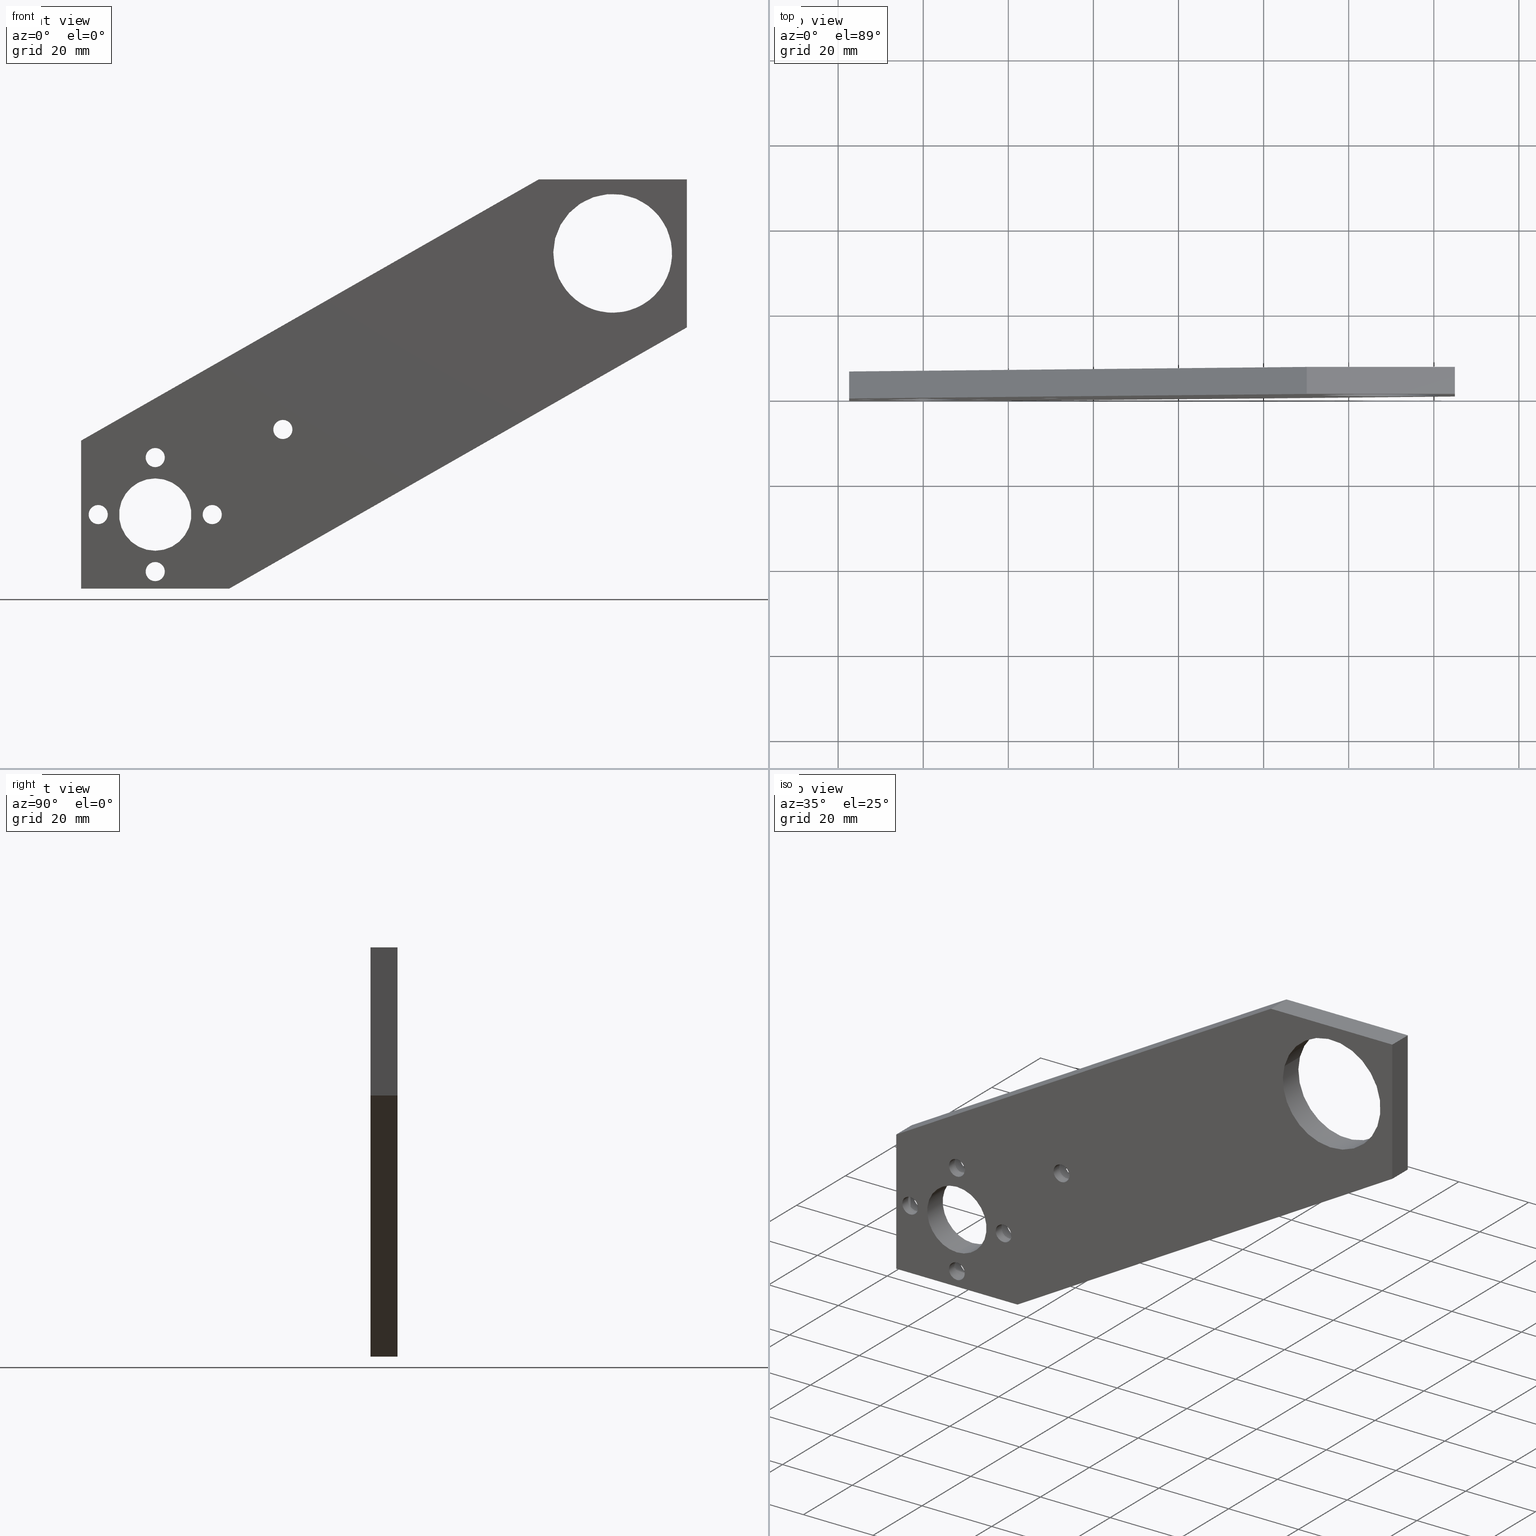
[diagram: canonical four-view strip — front | top / right | iso, engineering-drawing reading convention]
A machine part, canonical four-view strip (front | top / right | iso — engineering-drawing reading convention). The complete STEP part file that produces these views, byte-faithful:
ISO-10303-21;
HEADER;
/* Generated by software containing ST-Developer
 * from STEP Tools, Inc. (www.steptools.com) 
 */

FILE_DESCRIPTION(
/* description */ (''),
/* implementation_level */ '2;1');

FILE_NAME(
/* name */ 
'C:\\Users\\Charl\X\E8ne Brillard\\Desktop\\GHOSTINTHESHELL\\LM\\OpenS
PIM\\CAD\\Website\\4D-Motor-Arm_28 mm.stp',
/* time_stamp */ '2021-07-08T17:41:57+02:00',
/* author */ ('Charlene Brillard'),
/* organization */ (''),
/* preprocessor_version */ 'ST-DEVELOPER v16.5',
/* originating_system */ 'Autodesk Inventor 2017',
/* authorisation */ '');

FILE_SCHEMA (('AUTOMOTIVE_DESIGN { 1 0 10303 214 3 1 1 }'));
ENDSEC;

DATA;
#10=MECHANICAL_DESIGN_GEOMETRIC_PRESENTATION_REPRESENTATION('',(#16),#684);
#11=DIMENSIONAL_EXPONENTS(0.,0.,0.,0.,0.,0.,0.);
#12=(
CONVERSION_BASED_UNIT('degree',#13)
NAMED_UNIT(#11)
PLANE_ANGLE_UNIT()
);
#13=PLANE_ANGLE_MEASURE_WITH_UNIT(PLANE_ANGLE_MEASURE(0.01745329252),#687);
#14=SHAPE_REPRESENTATION_RELATIONSHIP('SRR','None',#690,#15);
#15=ADVANCED_BREP_SHAPE_REPRESENTATION('',(#17),#683);
#16=STYLED_ITEM('',(#699),#17);
#17=MANIFOLD_SOLID_BREP('Solid1',#402);
#18=LINE('',#586,#36);
#19=LINE('',#588,#37);
#20=LINE('',#590,#38);
#21=LINE('',#592,#39);
#22=LINE('',#594,#40);
#23=LINE('',#595,#41);
#24=LINE('',#611,#42);
#25=LINE('',#612,#43);
#26=LINE('',#613,#44);
#27=LINE('',#616,#45);
#28=LINE('',#617,#46);
#29=LINE('',#663,#47);
#30=LINE('',#665,#48);
#31=LINE('',#667,#49);
#32=LINE('',#668,#50);
#33=LINE('',#670,#51);
#34=LINE('',#672,#52);
#35=LINE('',#674,#53);
#36=VECTOR('',#469,1000.);
#37=VECTOR('',#470,1000.);
#38=VECTOR('',#471,1000.);
#39=VECTOR('',#472,1000.);
#40=VECTOR('',#473,10.);
#41=VECTOR('',#474,10.);
#42=VECTOR('',#489,10.);
#43=VECTOR('',#490,10.);
#44=VECTOR('',#491,10.);
#45=VECTOR('',#494,10.);
#46=VECTOR('',#495,10.);
#47=VECTOR('',#552,1000.);
#48=VECTOR('',#553,1000.);
#49=VECTOR('',#554,1000.);
#50=VECTOR('',#555,1000.);
#51=VECTOR('',#558,1000.);
#52=VECTOR('',#561,1000.);
#53=VECTOR('',#564,1000.);
#54=PLANE('',#413);
#55=PLANE('',#420);
#56=PLANE('',#421);
#57=PLANE('',#449);
#58=PLANE('',#450);
#59=PLANE('',#451);
#60=PLANE('',#452);
#61=PLANE('',#453);
#62=PLANE('',#454);
#63=PLANE('',#455);
#64=PLANE('',#456);
#65=PLANE('',#457);
#66=PLANE('',#458);
#67=FACE_BOUND('',#124,.T.);
#68=FACE_BOUND('',#126,.T.);
#69=FACE_BOUND('',#127,.T.);
#70=FACE_BOUND('',#128,.T.);
#71=FACE_BOUND('',#129,.T.);
#72=FACE_BOUND('',#130,.T.);
#73=FACE_BOUND('',#131,.T.);
#74=FACE_BOUND('',#132,.T.);
#75=FACE_BOUND('',#136,.T.);
#76=FACE_BOUND('',#138,.T.);
#77=FACE_BOUND('',#140,.T.);
#78=FACE_BOUND('',#142,.T.);
#79=FACE_BOUND('',#144,.T.);
#80=FACE_BOUND('',#146,.T.);
#81=FACE_BOUND('',#148,.T.);
#82=FACE_BOUND('',#150,.T.);
#83=FACE_BOUND('',#152,.T.);
#84=FACE_BOUND('',#154,.T.);
#85=FACE_BOUND('',#156,.T.);
#86=FACE_BOUND('',#158,.T.);
#87=FACE_BOUND('',#159,.T.);
#88=FACE_BOUND('',#160,.T.);
#89=FACE_BOUND('',#161,.T.);
#90=FACE_BOUND('',#162,.T.);
#91=FACE_BOUND('',#163,.T.);
#92=FACE_BOUND('',#164,.T.);
#93=FACE_BOUND('',#170,.T.);
#94=FACE_BOUND('',#172,.T.);
#95=FACE_BOUND('',#174,.T.);
#96=FACE_BOUND('',#176,.T.);
#97=FACE_BOUND('',#178,.T.);
#98=FACE_OUTER_BOUND('',#123,.T.);
#99=FACE_OUTER_BOUND('',#125,.T.);
#100=FACE_OUTER_BOUND('',#133,.T.);
#101=FACE_OUTER_BOUND('',#134,.T.);
#102=FACE_OUTER_BOUND('',#135,.T.);
#103=FACE_OUTER_BOUND('',#137,.T.);
#104=FACE_OUTER_BOUND('',#139,.T.);
#105=FACE_OUTER_BOUND('',#141,.T.);
#106=FACE_OUTER_BOUND('',#143,.T.);
#107=FACE_OUTER_BOUND('',#145,.T.);
#108=FACE_OUTER_BOUND('',#147,.T.);
#109=FACE_OUTER_BOUND('',#149,.T.);
#110=FACE_OUTER_BOUND('',#151,.T.);
#111=FACE_OUTER_BOUND('',#153,.T.);
#112=FACE_OUTER_BOUND('',#155,.T.);
#113=FACE_OUTER_BOUND('',#157,.T.);
#114=FACE_OUTER_BOUND('',#165,.T.);
#115=FACE_OUTER_BOUND('',#166,.T.);
#116=FACE_OUTER_BOUND('',#167,.T.);
#117=FACE_OUTER_BOUND('',#168,.T.);
#118=FACE_OUTER_BOUND('',#169,.T.);
#119=FACE_OUTER_BOUND('',#171,.T.);
#120=FACE_OUTER_BOUND('',#173,.T.);
#121=FACE_OUTER_BOUND('',#175,.T.);
#122=FACE_OUTER_BOUND('',#177,.T.);
#123=EDGE_LOOP('',(#281));
#124=EDGE_LOOP('',(#282));
#125=EDGE_LOOP('',(#283,#284,#285,#286,#287,#288));
#126=EDGE_LOOP('',(#289));
#127=EDGE_LOOP('',(#290));
#128=EDGE_LOOP('',(#291));
#129=EDGE_LOOP('',(#292));
#130=EDGE_LOOP('',(#293));
#131=EDGE_LOOP('',(#294));
#132=EDGE_LOOP('',(#295));
#133=EDGE_LOOP('',(#296,#297,#298,#299));
#134=EDGE_LOOP('',(#300,#301,#302,#303));
#135=EDGE_LOOP('',(#304));
#136=EDGE_LOOP('',(#305));
#137=EDGE_LOOP('',(#306));
#138=EDGE_LOOP('',(#307));
#139=EDGE_LOOP('',(#308));
#140=EDGE_LOOP('',(#309));
#141=EDGE_LOOP('',(#310));
#142=EDGE_LOOP('',(#311));
#143=EDGE_LOOP('',(#312));
#144=EDGE_LOOP('',(#313));
#145=EDGE_LOOP('',(#314));
#146=EDGE_LOOP('',(#315));
#147=EDGE_LOOP('',(#316));
#148=EDGE_LOOP('',(#317));
#149=EDGE_LOOP('',(#318));
#150=EDGE_LOOP('',(#319));
#151=EDGE_LOOP('',(#320));
#152=EDGE_LOOP('',(#321));
#153=EDGE_LOOP('',(#322));
#154=EDGE_LOOP('',(#323));
#155=EDGE_LOOP('',(#324));
#156=EDGE_LOOP('',(#325));
#157=EDGE_LOOP('',(#326,#327,#328,#329,#330,#331));
#158=EDGE_LOOP('',(#332));
#159=EDGE_LOOP('',(#333));
#160=EDGE_LOOP('',(#334));
#161=EDGE_LOOP('',(#335));
#162=EDGE_LOOP('',(#336));
#163=EDGE_LOOP('',(#337));
#164=EDGE_LOOP('',(#338));
#165=EDGE_LOOP('',(#339,#340,#341,#342));
#166=EDGE_LOOP('',(#343,#344,#345,#346));
#167=EDGE_LOOP('',(#347,#348,#349,#350));
#168=EDGE_LOOP('',(#351,#352,#353,#354));
#169=EDGE_LOOP('',(#355));
#170=EDGE_LOOP('',(#356));
#171=EDGE_LOOP('',(#357));
#172=EDGE_LOOP('',(#358));
#173=EDGE_LOOP('',(#359));
#174=EDGE_LOOP('',(#360));
#175=EDGE_LOOP('',(#361));
#176=EDGE_LOOP('',(#362));
#177=EDGE_LOOP('',(#363));
#178=EDGE_LOOP('',(#364));
#179=CIRCLE('',#411,14.);
#180=CIRCLE('',#412,14.);
#181=CIRCLE('',#414,2.25);
#182=CIRCLE('',#415,2.25);
#183=CIRCLE('',#416,2.25);
#184=CIRCLE('',#417,2.25);
#185=CIRCLE('',#418,2.25);
#186=CIRCLE('',#419,8.5);
#187=CIRCLE('',#423,3.75);
#188=CIRCLE('',#424,3.75);
#189=CIRCLE('',#426,2.25);
#190=CIRCLE('',#428,3.75);
#191=CIRCLE('',#429,3.75);
#192=CIRCLE('',#431,2.25);
#193=CIRCLE('',#433,3.75);
#194=CIRCLE('',#434,3.75);
#195=CIRCLE('',#436,2.25);
#196=CIRCLE('',#438,3.75);
#197=CIRCLE('',#439,3.75);
#198=CIRCLE('',#441,2.25);
#199=CIRCLE('',#443,3.75);
#200=CIRCLE('',#444,3.75);
#201=CIRCLE('',#446,2.25);
#202=CIRCLE('',#448,8.5);
#203=VERTEX_POINT('',#579);
#204=VERTEX_POINT('',#581);
#205=VERTEX_POINT('',#584);
#206=VERTEX_POINT('',#585);
#207=VERTEX_POINT('',#587);
#208=VERTEX_POINT('',#589);
#209=VERTEX_POINT('',#591);
#210=VERTEX_POINT('',#593);
#211=VERTEX_POINT('',#596);
#212=VERTEX_POINT('',#598);
#213=VERTEX_POINT('',#600);
#214=VERTEX_POINT('',#602);
#215=VERTEX_POINT('',#604);
#216=VERTEX_POINT('',#606);
#217=VERTEX_POINT('',#609);
#218=VERTEX_POINT('',#610);
#219=VERTEX_POINT('',#615);
#220=VERTEX_POINT('',#619);
#221=VERTEX_POINT('',#621);
#222=VERTEX_POINT('',#624);
#223=VERTEX_POINT('',#627);
#224=VERTEX_POINT('',#629);
#225=VERTEX_POINT('',#632);
#226=VERTEX_POINT('',#635);
#227=VERTEX_POINT('',#637);
#228=VERTEX_POINT('',#640);
#229=VERTEX_POINT('',#643);
#230=VERTEX_POINT('',#645);
#231=VERTEX_POINT('',#648);
#232=VERTEX_POINT('',#651);
#233=VERTEX_POINT('',#653);
#234=VERTEX_POINT('',#656);
#235=VERTEX_POINT('',#659);
#236=VERTEX_POINT('',#662);
#237=VERTEX_POINT('',#664);
#238=VERTEX_POINT('',#666);
#239=EDGE_CURVE('',#203,#203,#179,.T.);
#240=EDGE_CURVE('',#204,#204,#180,.T.);
#241=EDGE_CURVE('',#205,#206,#18,.T.);
#242=EDGE_CURVE('',#207,#205,#19,.T.);
#243=EDGE_CURVE('',#208,#207,#20,.T.);
#244=EDGE_CURVE('',#209,#208,#21,.T.);
#245=EDGE_CURVE('',#209,#210,#22,.T.);
#246=EDGE_CURVE('',#210,#206,#23,.T.);
#247=EDGE_CURVE('',#211,#211,#181,.T.);
#248=EDGE_CURVE('',#212,#212,#182,.T.);
#249=EDGE_CURVE('',#213,#213,#183,.T.);
#250=EDGE_CURVE('',#214,#214,#184,.T.);
#251=EDGE_CURVE('',#215,#215,#185,.T.);
#252=EDGE_CURVE('',#216,#216,#186,.T.);
#253=EDGE_CURVE('',#217,#218,#24,.T.);
#254=EDGE_CURVE('',#206,#218,#25,.T.);
#255=EDGE_CURVE('',#210,#217,#26,.T.);
#256=EDGE_CURVE('',#219,#217,#27,.T.);
#257=EDGE_CURVE('',#209,#219,#28,.T.);
#258=EDGE_CURVE('',#220,#220,#187,.T.);
#259=EDGE_CURVE('',#221,#221,#188,.T.);
#260=EDGE_CURVE('',#222,#222,#189,.T.);
#261=EDGE_CURVE('',#223,#223,#190,.T.);
#262=EDGE_CURVE('',#224,#224,#191,.T.);
#263=EDGE_CURVE('',#225,#225,#192,.T.);
#264=EDGE_CURVE('',#226,#226,#193,.T.);
#265=EDGE_CURVE('',#227,#227,#194,.T.);
#266=EDGE_CURVE('',#228,#228,#195,.T.);
#267=EDGE_CURVE('',#229,#229,#196,.T.);
#268=EDGE_CURVE('',#230,#230,#197,.T.);
#269=EDGE_CURVE('',#231,#231,#198,.T.);
#270=EDGE_CURVE('',#232,#232,#199,.T.);
#271=EDGE_CURVE('',#233,#233,#200,.T.);
#272=EDGE_CURVE('',#234,#234,#201,.T.);
#273=EDGE_CURVE('',#235,#235,#202,.T.);
#274=EDGE_CURVE('',#236,#218,#29,.T.);
#275=EDGE_CURVE('',#219,#237,#30,.T.);
#276=EDGE_CURVE('',#237,#238,#31,.T.);
#277=EDGE_CURVE('',#238,#236,#32,.T.);
#278=EDGE_CURVE('',#236,#205,#33,.T.);
#279=EDGE_CURVE('',#237,#208,#34,.T.);
#280=EDGE_CURVE('',#238,#207,#35,.T.);
#281=ORIENTED_EDGE('',*,*,#239,.F.);
#282=ORIENTED_EDGE('',*,*,#240,.F.);
#283=ORIENTED_EDGE('',*,*,#241,.F.);
#284=ORIENTED_EDGE('',*,*,#242,.F.);
#285=ORIENTED_EDGE('',*,*,#243,.F.);
#286=ORIENTED_EDGE('',*,*,#244,.F.);
#287=ORIENTED_EDGE('',*,*,#245,.T.);
#288=ORIENTED_EDGE('',*,*,#246,.T.);
#289=ORIENTED_EDGE('',*,*,#247,.T.);
#290=ORIENTED_EDGE('',*,*,#248,.T.);
#291=ORIENTED_EDGE('',*,*,#249,.T.);
#292=ORIENTED_EDGE('',*,*,#250,.T.);
#293=ORIENTED_EDGE('',*,*,#251,.T.);
#294=ORIENTED_EDGE('',*,*,#239,.T.);
#295=ORIENTED_EDGE('',*,*,#252,.T.);
#296=ORIENTED_EDGE('',*,*,#253,.T.);
#297=ORIENTED_EDGE('',*,*,#254,.F.);
#298=ORIENTED_EDGE('',*,*,#246,.F.);
#299=ORIENTED_EDGE('',*,*,#255,.T.);
#300=ORIENTED_EDGE('',*,*,#256,.T.);
#301=ORIENTED_EDGE('',*,*,#255,.F.);
#302=ORIENTED_EDGE('',*,*,#245,.F.);
#303=ORIENTED_EDGE('',*,*,#257,.T.);
#304=ORIENTED_EDGE('',*,*,#258,.F.);
#305=ORIENTED_EDGE('',*,*,#259,.T.);
#306=ORIENTED_EDGE('',*,*,#251,.F.);
#307=ORIENTED_EDGE('',*,*,#260,.T.);
#308=ORIENTED_EDGE('',*,*,#261,.F.);
#309=ORIENTED_EDGE('',*,*,#262,.T.);
#310=ORIENTED_EDGE('',*,*,#250,.F.);
#311=ORIENTED_EDGE('',*,*,#263,.T.);
#312=ORIENTED_EDGE('',*,*,#264,.F.);
#313=ORIENTED_EDGE('',*,*,#265,.T.);
#314=ORIENTED_EDGE('',*,*,#249,.F.);
#315=ORIENTED_EDGE('',*,*,#266,.T.);
#316=ORIENTED_EDGE('',*,*,#267,.F.);
#317=ORIENTED_EDGE('',*,*,#268,.T.);
#318=ORIENTED_EDGE('',*,*,#248,.F.);
#319=ORIENTED_EDGE('',*,*,#269,.T.);
#320=ORIENTED_EDGE('',*,*,#270,.F.);
#321=ORIENTED_EDGE('',*,*,#271,.T.);
#322=ORIENTED_EDGE('',*,*,#247,.F.);
#323=ORIENTED_EDGE('',*,*,#272,.T.);
#324=ORIENTED_EDGE('',*,*,#273,.T.);
#325=ORIENTED_EDGE('',*,*,#252,.F.);
#326=ORIENTED_EDGE('',*,*,#274,.T.);
#327=ORIENTED_EDGE('',*,*,#253,.F.);
#328=ORIENTED_EDGE('',*,*,#256,.F.);
#329=ORIENTED_EDGE('',*,*,#275,.T.);
#330=ORIENTED_EDGE('',*,*,#276,.T.);
#331=ORIENTED_EDGE('',*,*,#277,.T.);
#332=ORIENTED_EDGE('',*,*,#240,.T.);
#333=ORIENTED_EDGE('',*,*,#259,.F.);
#334=ORIENTED_EDGE('',*,*,#262,.F.);
#335=ORIENTED_EDGE('',*,*,#265,.F.);
#336=ORIENTED_EDGE('',*,*,#268,.F.);
#337=ORIENTED_EDGE('',*,*,#271,.F.);
#338=ORIENTED_EDGE('',*,*,#273,.F.);
#339=ORIENTED_EDGE('',*,*,#241,.T.);
#340=ORIENTED_EDGE('',*,*,#254,.T.);
#341=ORIENTED_EDGE('',*,*,#274,.F.);
#342=ORIENTED_EDGE('',*,*,#278,.T.);
#343=ORIENTED_EDGE('',*,*,#244,.T.);
#344=ORIENTED_EDGE('',*,*,#279,.F.);
#345=ORIENTED_EDGE('',*,*,#275,.F.);
#346=ORIENTED_EDGE('',*,*,#257,.F.);
#347=ORIENTED_EDGE('',*,*,#243,.T.);
#348=ORIENTED_EDGE('',*,*,#280,.F.);
#349=ORIENTED_EDGE('',*,*,#276,.F.);
#350=ORIENTED_EDGE('',*,*,#279,.T.);
#351=ORIENTED_EDGE('',*,*,#242,.T.);
#352=ORIENTED_EDGE('',*,*,#278,.F.);
#353=ORIENTED_EDGE('',*,*,#277,.F.);
#354=ORIENTED_EDGE('',*,*,#280,.T.);
#355=ORIENTED_EDGE('',*,*,#270,.T.);
#356=ORIENTED_EDGE('',*,*,#272,.F.);
#357=ORIENTED_EDGE('',*,*,#267,.T.);
#358=ORIENTED_EDGE('',*,*,#269,.F.);
#359=ORIENTED_EDGE('',*,*,#264,.T.);
#360=ORIENTED_EDGE('',*,*,#266,.F.);
#361=ORIENTED_EDGE('',*,*,#261,.T.);
#362=ORIENTED_EDGE('',*,*,#263,.F.);
#363=ORIENTED_EDGE('',*,*,#258,.T.);
#364=ORIENTED_EDGE('',*,*,#260,.F.);
#365=CYLINDRICAL_SURFACE('',#410,14.);
#366=CYLINDRICAL_SURFACE('',#422,3.75);
#367=CYLINDRICAL_SURFACE('',#425,2.25);
#368=CYLINDRICAL_SURFACE('',#427,3.75);
#369=CYLINDRICAL_SURFACE('',#430,2.25);
#370=CYLINDRICAL_SURFACE('',#432,3.75);
#371=CYLINDRICAL_SURFACE('',#435,2.25);
#372=CYLINDRICAL_SURFACE('',#437,3.75);
#373=CYLINDRICAL_SURFACE('',#440,2.25);
#374=CYLINDRICAL_SURFACE('',#442,3.75);
#375=CYLINDRICAL_SURFACE('',#445,2.25);
#376=CYLINDRICAL_SURFACE('',#447,8.5);
#377=ADVANCED_FACE('',(#98,#67),#365,.F.);
#378=ADVANCED_FACE('',(#99,#68,#69,#70,#71,#72,#73,#74),#54,.F.);
#379=ADVANCED_FACE('',(#100),#55,.T.);
#380=ADVANCED_FACE('',(#101),#56,.T.);
#381=ADVANCED_FACE('',(#102,#75),#366,.F.);
#382=ADVANCED_FACE('',(#103,#76),#367,.F.);
#383=ADVANCED_FACE('',(#104,#77),#368,.F.);
#384=ADVANCED_FACE('',(#105,#78),#369,.F.);
#385=ADVANCED_FACE('',(#106,#79),#370,.F.);
#386=ADVANCED_FACE('',(#107,#80),#371,.F.);
#387=ADVANCED_FACE('',(#108,#81),#372,.F.);
#388=ADVANCED_FACE('',(#109,#82),#373,.F.);
#389=ADVANCED_FACE('',(#110,#83),#374,.F.);
#390=ADVANCED_FACE('',(#111,#84),#375,.F.);
#391=ADVANCED_FACE('',(#112,#85),#376,.F.);
#392=ADVANCED_FACE('',(#113,#86,#87,#88,#89,#90,#91,#92),#57,.T.);
#393=ADVANCED_FACE('',(#114),#58,.F.);
#394=ADVANCED_FACE('',(#115),#59,.F.);
#395=ADVANCED_FACE('',(#116),#60,.F.);
#396=ADVANCED_FACE('',(#117),#61,.F.);
#397=ADVANCED_FACE('',(#118,#93),#62,.F.);
#398=ADVANCED_FACE('',(#119,#94),#63,.F.);
#399=ADVANCED_FACE('',(#120,#95),#64,.F.);
#400=ADVANCED_FACE('',(#121,#96),#65,.F.);
#401=ADVANCED_FACE('',(#122,#97),#66,.F.);
#402=CLOSED_SHELL('',(#377,#378,#379,#380,#381,#382,#383,#384,#385,#386,
#387,#388,#389,#390,#391,#392,#393,#394,#395,#396,#397,#398,#399,#400,#401));
#403=DATE_TIME_ROLE('creation_date');
#404=APPLIED_DATE_AND_TIME_ASSIGNMENT(#405,#403,(#692));
#405=DATE_AND_TIME(#406,#407);
#406=CALENDAR_DATE(2021,11,5);
#407=LOCAL_TIME(7,36,23.,#408);
#408=COORDINATED_UNIVERSAL_TIME_OFFSET(0,0,.BEHIND.);
#409=AXIS2_PLACEMENT_3D('placement',#577,#459,#460);
#410=AXIS2_PLACEMENT_3D('',#578,#461,#462);
#411=AXIS2_PLACEMENT_3D('',#580,#463,#464);
#412=AXIS2_PLACEMENT_3D('',#582,#465,#466);
#413=AXIS2_PLACEMENT_3D('',#583,#467,#468);
#414=AXIS2_PLACEMENT_3D('',#597,#475,#476);
#415=AXIS2_PLACEMENT_3D('',#599,#477,#478);
#416=AXIS2_PLACEMENT_3D('',#601,#479,#480);
#417=AXIS2_PLACEMENT_3D('',#603,#481,#482);
#418=AXIS2_PLACEMENT_3D('',#605,#483,#484);
#419=AXIS2_PLACEMENT_3D('',#607,#485,#486);
#420=AXIS2_PLACEMENT_3D('',#608,#487,#488);
#421=AXIS2_PLACEMENT_3D('',#614,#492,#493);
#422=AXIS2_PLACEMENT_3D('',#618,#496,#497);
#423=AXIS2_PLACEMENT_3D('',#620,#498,#499);
#424=AXIS2_PLACEMENT_3D('',#622,#500,#501);
#425=AXIS2_PLACEMENT_3D('',#623,#502,#503);
#426=AXIS2_PLACEMENT_3D('',#625,#504,#505);
#427=AXIS2_PLACEMENT_3D('',#626,#506,#507);
#428=AXIS2_PLACEMENT_3D('',#628,#508,#509);
#429=AXIS2_PLACEMENT_3D('',#630,#510,#511);
#430=AXIS2_PLACEMENT_3D('',#631,#512,#513);
#431=AXIS2_PLACEMENT_3D('',#633,#514,#515);
#432=AXIS2_PLACEMENT_3D('',#634,#516,#517);
#433=AXIS2_PLACEMENT_3D('',#636,#518,#519);
#434=AXIS2_PLACEMENT_3D('',#638,#520,#521);
#435=AXIS2_PLACEMENT_3D('',#639,#522,#523);
#436=AXIS2_PLACEMENT_3D('',#641,#524,#525);
#437=AXIS2_PLACEMENT_3D('',#642,#526,#527);
#438=AXIS2_PLACEMENT_3D('',#644,#528,#529);
#439=AXIS2_PLACEMENT_3D('',#646,#530,#531);
#440=AXIS2_PLACEMENT_3D('',#647,#532,#533);
#441=AXIS2_PLACEMENT_3D('',#649,#534,#535);
#442=AXIS2_PLACEMENT_3D('',#650,#536,#537);
#443=AXIS2_PLACEMENT_3D('',#652,#538,#539);
#444=AXIS2_PLACEMENT_3D('',#654,#540,#541);
#445=AXIS2_PLACEMENT_3D('',#655,#542,#543);
#446=AXIS2_PLACEMENT_3D('',#657,#544,#545);
#447=AXIS2_PLACEMENT_3D('',#658,#546,#547);
#448=AXIS2_PLACEMENT_3D('',#660,#548,#549);
#449=AXIS2_PLACEMENT_3D('',#661,#550,#551);
#450=AXIS2_PLACEMENT_3D('',#669,#556,#557);
#451=AXIS2_PLACEMENT_3D('',#671,#559,#560);
#452=AXIS2_PLACEMENT_3D('',#673,#562,#563);
#453=AXIS2_PLACEMENT_3D('',#675,#565,#566);
#454=AXIS2_PLACEMENT_3D('',#676,#567,#568);
#455=AXIS2_PLACEMENT_3D('',#677,#569,#570);
#456=AXIS2_PLACEMENT_3D('',#678,#571,#572);
#457=AXIS2_PLACEMENT_3D('',#679,#573,#574);
#458=AXIS2_PLACEMENT_3D('',#680,#575,#576);
#459=DIRECTION('axis',(0.,0.,1.));
#460=DIRECTION('refdir',(1.,0.,0.));
#461=DIRECTION('center_axis',(0.,1.,0.));
#462=DIRECTION('ref_axis',(-1.,0.,0.));
#463=DIRECTION('center_axis',(0.,1.,0.));
#464=DIRECTION('ref_axis',(-1.,0.,0.));
#465=DIRECTION('center_axis',(0.,-1.,0.));
#466=DIRECTION('ref_axis',(-1.,0.,0.));
#467=DIRECTION('center_axis',(0.,1.,0.));
#468=DIRECTION('ref_axis',(0.,0.,1.));
#469=DIRECTION('',(0.868496911613889,0.,0.49569457785731));
#470=DIRECTION('',(0.,0.,1.));
#471=DIRECTION('',(-1.,0.,0.));
#472=DIRECTION('',(-0.868496911613889,0.,-0.49569457785731));
#473=DIRECTION('',(0.,0.,1.));
#474=DIRECTION('',(-1.,0.,0.));
#475=DIRECTION('center_axis',(0.,1.,0.));
#476=DIRECTION('ref_axis',(0.,0.,1.));
#477=DIRECTION('center_axis',(0.,1.,0.));
#478=DIRECTION('ref_axis',(0.,0.,1.));
#479=DIRECTION('center_axis',(0.,1.,0.));
#480=DIRECTION('ref_axis',(0.,0.,1.));
#481=DIRECTION('center_axis',(0.,1.,0.));
#482=DIRECTION('ref_axis',(0.,0.,1.));
#483=DIRECTION('center_axis',(0.,1.,0.));
#484=DIRECTION('ref_axis',(0.,0.,1.));
#485=DIRECTION('center_axis',(0.,1.,0.));
#486=DIRECTION('ref_axis',(0.,0.,1.));
#487=DIRECTION('center_axis',(0.,0.,1.));
#488=DIRECTION('ref_axis',(1.,0.,0.));
#489=DIRECTION('',(-1.,0.,0.));
#490=DIRECTION('',(0.,1.,0.));
#491=DIRECTION('',(0.,1.,0.));
#492=DIRECTION('center_axis',(1.,0.,0.));
#493=DIRECTION('ref_axis',(0.,0.,-1.));
#494=DIRECTION('',(0.,0.,1.));
#495=DIRECTION('',(0.,1.,0.));
#496=DIRECTION('center_axis',(0.,1.,0.));
#497=DIRECTION('ref_axis',(0.,0.,1.));
#498=DIRECTION('center_axis',(0.,1.,0.));
#499=DIRECTION('ref_axis',(0.,0.,1.));
#500=DIRECTION('center_axis',(0.,1.,0.));
#501=DIRECTION('ref_axis',(0.,0.,1.));
#502=DIRECTION('center_axis',(0.,1.,0.));
#503=DIRECTION('ref_axis',(0.,0.,1.));
#504=DIRECTION('center_axis',(0.,1.,0.));
#505=DIRECTION('ref_axis',(0.,0.,1.));
#506=DIRECTION('center_axis',(0.,1.,0.));
#507=DIRECTION('ref_axis',(0.,0.,1.));
#508=DIRECTION('center_axis',(0.,1.,0.));
#509=DIRECTION('ref_axis',(0.,0.,1.));
#510=DIRECTION('center_axis',(0.,1.,0.));
#511=DIRECTION('ref_axis',(0.,0.,1.));
#512=DIRECTION('center_axis',(0.,1.,0.));
#513=DIRECTION('ref_axis',(0.,0.,1.));
#514=DIRECTION('center_axis',(0.,1.,0.));
#515=DIRECTION('ref_axis',(0.,0.,1.));
#516=DIRECTION('center_axis',(0.,1.,0.));
#517=DIRECTION('ref_axis',(0.,0.,1.));
#518=DIRECTION('center_axis',(0.,1.,0.));
#519=DIRECTION('ref_axis',(0.,0.,1.));
#520=DIRECTION('center_axis',(0.,1.,0.));
#521=DIRECTION('ref_axis',(0.,0.,1.));
#522=DIRECTION('center_axis',(0.,1.,0.));
#523=DIRECTION('ref_axis',(0.,0.,1.));
#524=DIRECTION('center_axis',(0.,1.,0.));
#525=DIRECTION('ref_axis',(0.,0.,1.));
#526=DIRECTION('center_axis',(0.,1.,0.));
#527=DIRECTION('ref_axis',(0.,0.,1.));
#528=DIRECTION('center_axis',(0.,1.,0.));
#529=DIRECTION('ref_axis',(0.,0.,1.));
#530=DIRECTION('center_axis',(0.,1.,0.));
#531=DIRECTION('ref_axis',(0.,0.,1.));
#532=DIRECTION('center_axis',(0.,1.,0.));
#533=DIRECTION('ref_axis',(0.,0.,1.));
#534=DIRECTION('center_axis',(0.,1.,0.));
#535=DIRECTION('ref_axis',(0.,0.,1.));
#536=DIRECTION('center_axis',(0.,1.,0.));
#537=DIRECTION('ref_axis',(0.,0.,1.));
#538=DIRECTION('center_axis',(0.,1.,0.));
#539=DIRECTION('ref_axis',(0.,0.,1.));
#540=DIRECTION('center_axis',(0.,1.,0.));
#541=DIRECTION('ref_axis',(0.,0.,1.));
#542=DIRECTION('center_axis',(0.,1.,0.));
#543=DIRECTION('ref_axis',(0.,0.,1.));
#544=DIRECTION('center_axis',(0.,1.,0.));
#545=DIRECTION('ref_axis',(0.,0.,1.));
#546=DIRECTION('center_axis',(0.,-1.,0.));
#547=DIRECTION('ref_axis',(0.,0.,-1.));
#548=DIRECTION('center_axis',(0.,1.,0.));
#549=DIRECTION('ref_axis',(0.,0.,1.));
#550=DIRECTION('center_axis',(0.,1.,0.));
#551=DIRECTION('ref_axis',(0.,0.,1.));
#552=DIRECTION('',(0.868496911613889,0.,0.49569457785731));
#553=DIRECTION('',(-0.868496911613889,0.,-0.49569457785731));
#554=DIRECTION('',(-1.,0.,0.));
#555=DIRECTION('',(0.,0.,1.));
#556=DIRECTION('center_axis',(0.49569457785731,0.,-0.868496911613889));
#557=DIRECTION('ref_axis',(-0.868496911613889,0.,-0.495694577857311));
#558=DIRECTION('',(0.,-1.,0.));
#559=DIRECTION('center_axis',(-0.49569457785731,0.,0.868496911613889));
#560=DIRECTION('ref_axis',(0.868496911613889,0.,0.495694577857311));
#561=DIRECTION('',(0.,-1.,0.));
#562=DIRECTION('center_axis',(0.,0.,1.));
#563=DIRECTION('ref_axis',(1.,0.,0.));
#564=DIRECTION('',(0.,-1.,0.));
#565=DIRECTION('center_axis',(1.,0.,0.));
#566=DIRECTION('ref_axis',(0.,0.,-1.));
#567=DIRECTION('center_axis',(0.,-1.,0.));
#568=DIRECTION('ref_axis',(0.,0.,-1.));
#569=DIRECTION('center_axis',(0.,-1.,0.));
#570=DIRECTION('ref_axis',(0.,0.,-1.));
#571=DIRECTION('center_axis',(0.,-1.,0.));
#572=DIRECTION('ref_axis',(0.,0.,-1.));
#573=DIRECTION('center_axis',(0.,-1.,0.));
#574=DIRECTION('ref_axis',(0.,0.,-1.));
#575=DIRECTION('center_axis',(0.,-1.,0.));
#576=DIRECTION('ref_axis',(0.,0.,-1.));
#577=CARTESIAN_POINT('',(0.,0.,0.));
#578=CARTESIAN_POINT('Origin',(107.541888,0.,61.3795283106746));
#579=CARTESIAN_POINT('',(103.705750815427,0.,47.9153517112262));
#580=CARTESIAN_POINT('Origin',(107.541888,0.,61.3795283106746));
#581=CARTESIAN_POINT('',(93.9980251845734,6.35,64.9240705994484));
#582=CARTESIAN_POINT('Origin',(107.541888,6.35,61.3795283106746));
#583=CARTESIAN_POINT('Origin',(107.561888,0.,88.7219926197627));
#584=CARTESIAN_POINT('',(-17.4,0.,17.4));
#585=CARTESIAN_POINT('',(90.141888,0.,78.7795283106746));
#586=CARTESIAN_POINT('',(-17.4,0.,17.4));
#587=CARTESIAN_POINT('',(-17.4,0.,-17.4));
#588=CARTESIAN_POINT('',(-17.4,0.,17.4));
#589=CARTESIAN_POINT('',(17.4,0.,-17.4));
#590=CARTESIAN_POINT('',(-17.4,0.,-17.4));
#591=CARTESIAN_POINT('',(124.941888,0.,43.9795283106746));
#592=CARTESIAN_POINT('',(17.4,0.,-17.4));
#593=CARTESIAN_POINT('',(124.941888,0.,78.7795283106746));
#594=CARTESIAN_POINT('',(124.941888,0.,43.9795283106746));
#595=CARTESIAN_POINT('',(124.941888,0.,78.7795283106746));
#596=CARTESIAN_POINT('',(0.,0.,-11.15));
#597=CARTESIAN_POINT('Origin',(0.,0.,-13.4));
#598=CARTESIAN_POINT('',(-13.4,0.,2.25000000000005));
#599=CARTESIAN_POINT('Origin',(-13.4,0.,4.6785849940498E-14));
#600=CARTESIAN_POINT('',(0.,0.,15.65));
#601=CARTESIAN_POINT('Origin',(0.,0.,13.4));
#602=CARTESIAN_POINT('',(13.4,0.,2.24999999999986));
#603=CARTESIAN_POINT('Origin',(13.4,0.,-1.40357549821494E-13));
#604=CARTESIAN_POINT('',(30.,0.,22.25));
#605=CARTESIAN_POINT('Origin',(30.,0.,20.));
#606=CARTESIAN_POINT('',(0.,0.,-8.5));
#607=CARTESIAN_POINT('Origin',(0.,0.,0.));
#608=CARTESIAN_POINT('Origin',(90.141888,0.,78.7795283106746));
#609=CARTESIAN_POINT('',(124.941888,6.35,78.7795283106746));
#610=CARTESIAN_POINT('',(90.141888,6.35,78.7795283106746));
#611=CARTESIAN_POINT('',(94.496888,6.35,78.7795283106746));
#612=CARTESIAN_POINT('',(90.141888,0.,78.7795283106746));
#613=CARTESIAN_POINT('',(124.941888,0.,78.7795283106746));
#614=CARTESIAN_POINT('Origin',(124.941888,0.,78.7795283106746));
#615=CARTESIAN_POINT('',(124.941888,6.35,43.9795283106746));
#616=CARTESIAN_POINT('',(124.941888,6.35,67.599619733006));
#617=CARTESIAN_POINT('',(124.941888,0.,43.9795283106746));
#618=CARTESIAN_POINT('Origin',(30.,6.35,20.));
#619=CARTESIAN_POINT('',(30.,2.35,23.75));
#620=CARTESIAN_POINT('Origin',(30.,2.35,20.));
#621=CARTESIAN_POINT('',(30.,6.35,23.75));
#622=CARTESIAN_POINT('Origin',(30.,6.35,20.));
#623=CARTESIAN_POINT('Origin',(30.,6.35,20.));
#624=CARTESIAN_POINT('',(30.,2.35,22.25));
#625=CARTESIAN_POINT('Origin',(30.,2.35,20.));
#626=CARTESIAN_POINT('Origin',(13.4,6.35,-1.40357549821494E-13));
#627=CARTESIAN_POINT('',(13.4,2.35,3.74999999999986));
#628=CARTESIAN_POINT('Origin',(13.4,2.35,-1.40357549821494E-13));
#629=CARTESIAN_POINT('',(13.4,6.35,3.74999999999986));
#630=CARTESIAN_POINT('Origin',(13.4,6.35,-1.40357549821494E-13));
#631=CARTESIAN_POINT('Origin',(13.4,6.35,-1.40357549821494E-13));
#632=CARTESIAN_POINT('',(13.4,2.35,2.24999999999986));
#633=CARTESIAN_POINT('Origin',(13.4,2.35,-1.40357549821494E-13));
#634=CARTESIAN_POINT('Origin',(0.,6.35,13.4));
#635=CARTESIAN_POINT('',(0.,2.35,17.15));
#636=CARTESIAN_POINT('Origin',(0.,2.35,13.4));
#637=CARTESIAN_POINT('',(0.,6.35,17.15));
#638=CARTESIAN_POINT('Origin',(0.,6.35,13.4));
#639=CARTESIAN_POINT('Origin',(0.,6.35,13.4));
#640=CARTESIAN_POINT('',(0.,2.35,15.65));
#641=CARTESIAN_POINT('Origin',(0.,2.35,13.4));
#642=CARTESIAN_POINT('Origin',(-13.4,6.35,4.6785849940498E-14));
#643=CARTESIAN_POINT('',(-13.4,2.35,3.75000000000005));
#644=CARTESIAN_POINT('Origin',(-13.4,2.35,4.6785849940498E-14));
#645=CARTESIAN_POINT('',(-13.4,6.35,3.75000000000005));
#646=CARTESIAN_POINT('Origin',(-13.4,6.35,4.6785849940498E-14));
#647=CARTESIAN_POINT('Origin',(-13.4,6.35,4.6785849940498E-14));
#648=CARTESIAN_POINT('',(-13.4,2.35,2.25000000000005));
#649=CARTESIAN_POINT('Origin',(-13.4,2.35,4.6785849940498E-14));
#650=CARTESIAN_POINT('Origin',(0.,6.35,-13.4));
#651=CARTESIAN_POINT('',(0.,2.35,-9.65));
#652=CARTESIAN_POINT('Origin',(0.,2.35,-13.4));
#653=CARTESIAN_POINT('',(0.,6.35,-9.65));
#654=CARTESIAN_POINT('Origin',(0.,6.35,-13.4));
#655=CARTESIAN_POINT('Origin',(0.,6.35,-13.4));
#656=CARTESIAN_POINT('',(0.,2.35,-11.15));
#657=CARTESIAN_POINT('Origin',(0.,2.35,-13.4));
#658=CARTESIAN_POINT('Origin',(0.,6.35,0.));
#659=CARTESIAN_POINT('',(0.,6.35,-8.5));
#660=CARTESIAN_POINT('Origin',(0.,6.35,0.));
#661=CARTESIAN_POINT('Origin',(107.561888,6.35,88.7219926197627));
#662=CARTESIAN_POINT('',(-17.4,6.35,17.4));
#663=CARTESIAN_POINT('',(-17.4,6.35,17.4));
#664=CARTESIAN_POINT('',(17.4,6.35,-17.4));
#665=CARTESIAN_POINT('',(17.4,6.35,-17.4));
#666=CARTESIAN_POINT('',(-17.4,6.35,-17.4));
#667=CARTESIAN_POINT('',(-17.4,6.35,-17.4));
#668=CARTESIAN_POINT('',(-17.4,6.35,17.4));
#669=CARTESIAN_POINT('Origin',(-17.4,6.35,17.4));
#670=CARTESIAN_POINT('',(-17.4,6.35,17.4));
#671=CARTESIAN_POINT('Origin',(17.4,6.35,-17.4));
#672=CARTESIAN_POINT('',(17.4,6.35,-17.4));
#673=CARTESIAN_POINT('Origin',(-17.4,6.35,-17.4));
#674=CARTESIAN_POINT('',(-17.4,6.35,-17.4));
#675=CARTESIAN_POINT('Origin',(-17.4,6.35,17.4));
#676=CARTESIAN_POINT('Origin',(2.25,2.35,-13.4));
#677=CARTESIAN_POINT('Origin',(-11.15,2.35,4.6785849940498E-14));
#678=CARTESIAN_POINT('Origin',(2.25,2.35,13.4));
#679=CARTESIAN_POINT('Origin',(15.65,2.35,-1.40357549821494E-13));
#680=CARTESIAN_POINT('Origin',(32.25,2.35,20.));
#681=UNCERTAINTY_MEASURE_WITH_UNIT(LENGTH_MEASURE(0.01),#685,
'DISTANCE_ACCURACY_VALUE',
'Maximum model space distance between geometric entities at asserted c
onnectivities');
#682=UNCERTAINTY_MEASURE_WITH_UNIT(LENGTH_MEASURE(1.E-6),#685,
'DISTANCE_ACCURACY_VALUE',
'Maximum model space distance between geometric entities at asserted c
onnectivities');
#683=(
GEOMETRIC_REPRESENTATION_CONTEXT(3)
GLOBAL_UNCERTAINTY_ASSIGNED_CONTEXT((#681))
GLOBAL_UNIT_ASSIGNED_CONTEXT((#685,#687,#686))
REPRESENTATION_CONTEXT('','3D')
);
#684=(
GEOMETRIC_REPRESENTATION_CONTEXT(3)
GLOBAL_UNCERTAINTY_ASSIGNED_CONTEXT((#682))
GLOBAL_UNIT_ASSIGNED_CONTEXT((#685,#12,#686))
REPRESENTATION_CONTEXT('','3D')
);
#685=(
LENGTH_UNIT()
NAMED_UNIT(*)
SI_UNIT(.MILLI.,.METRE.)
);
#686=(
NAMED_UNIT(*)
SI_UNIT($,.STERADIAN.)
SOLID_ANGLE_UNIT()
);
#687=(
NAMED_UNIT(*)
PLANE_ANGLE_UNIT()
SI_UNIT($,.RADIAN.)
);
#688=SHAPE_DEFINITION_REPRESENTATION(#689,#690);
#689=PRODUCT_DEFINITION_SHAPE('',$,#692);
#690=SHAPE_REPRESENTATION('',(#409),#683);
#691=PRODUCT_DEFINITION_CONTEXT('part definition',#696,'design');
#692=PRODUCT_DEFINITION('4D-Motor-Arm_28 mm','4D-Motor-Arm_28 mm',#693,
#691);
#693=PRODUCT_DEFINITION_FORMATION('ANY',$,#698);
#694=PRODUCT_RELATED_PRODUCT_CATEGORY('4D-Motor-Arm_28 mm',
'4D-Motor-Arm_28 mm',(#698));
#695=APPLICATION_PROTOCOL_DEFINITION('international standard',
'automotive_design',2009,#696);
#696=APPLICATION_CONTEXT(
'Core Data for Automotive Mechanical Design Process');
#697=PRODUCT_CONTEXT('part definition',#696,'mechanical');
#698=PRODUCT('4D-Motor-Arm_28 mm','4D-Motor-Arm_28 mm',$,(#697));
#699=PRESENTATION_STYLE_ASSIGNMENT((#700));
#700=SURFACE_STYLE_USAGE(.BOTH.,#701);
#701=SURFACE_SIDE_STYLE('',(#702));
#702=SURFACE_STYLE_FILL_AREA(#703);
#703=FILL_AREA_STYLE('',(#704));
#704=FILL_AREA_STYLE_COLOUR('',#705);
#705=COLOUR_RGB('',0.0196078431372549,0.0196078431372549,0.0196078431372549);
ENDSEC;
END-ISO-10303-21;
